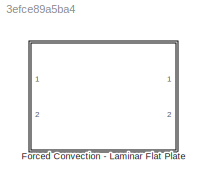
MODEL slx_3efce89a5ba4
KIND library
CONFIG AbsTol = auto
CONFIG FixedStep = auto
CONFIG MaxStep = auto
CONFIG MinStep = auto
CONFIG RelTol = 1e-3
CONFIG SampleTimeConstraint = Unconstrained
CONFIG Solver = ode45
CONFIG SolverMode = Auto
CONFIG SolverName = ode45
CONFIG StartTime = 0.0
CONFIG StopTime = 10.0
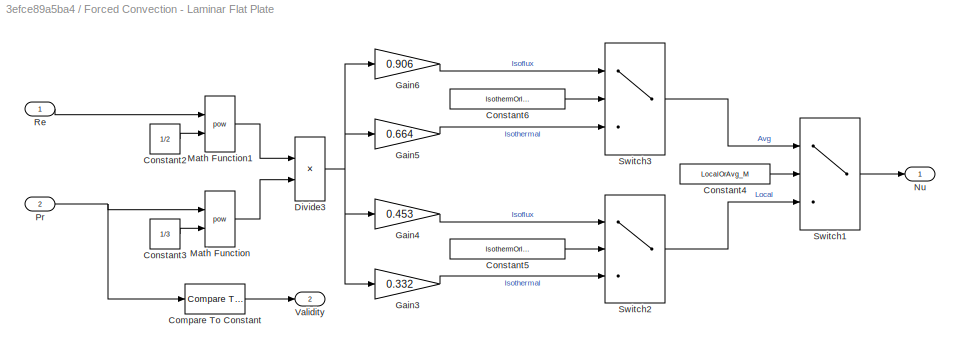
BLOCK [SubSystem] Forced Convection - Laminar Flat Plate
  Ports = [2, 2]
  RequestExecContextInheritance = off
BLOCK [Reference] Forced Convection - Laminar Flat Plate/Compare To Constant  REF=simulink/Logic and Bit
Operations/Compare
To Constant
  OutDataTypeStr = boolean
  Ports = [1, 1]
  SourceBlock = simulink/Logic and Bit\nOperations/Compare\nTo Constant
  SourceType = Compare To Constant
  ZeroCross = on
  const = 0.6
  relop = <
BLOCK [Constant] Forced Convection - Laminar Flat Plate/Constant2
  Value = 1/2
BLOCK [Constant] Forced Convection - Laminar Flat Plate/Constant3
  Value = 1/3
BLOCK [Constant] Forced Convection - Laminar Flat Plate/Constant4
  Value = LocalOrAvg_M
BLOCK [Constant] Forced Convection - Laminar Flat Plate/Constant5
  Value = IsothermOrIsoflux_M
BLOCK [Constant] Forced Convection - Laminar Flat Plate/Constant6
  Value = IsothermOrIsoflux_M
BLOCK [Product] Forced Convection - Laminar Flat Plate/Divide3
  InputSameDT = off
  Inputs = **
  OutDataTypeStr = Inherit: Inherit via internal rule
  Ports = [2, 1]
  RndMeth = Floor
  SaturateOnIntegerOverflow = off
BLOCK [Gain] Forced Convection - Laminar Flat Plate/Gain3
  Gain = 0.332
  OutDataTypeStr = Inherit: Inherit via internal rule
  ParamDataTypeStr = Inherit: Inherit via internal rule
  SaturateOnIntegerOverflow = off
BLOCK [Gain] Forced Convection - Laminar Flat Plate/Gain4
  Gain = 0.453
  OutDataTypeStr = Inherit: Inherit via internal rule
  ParamDataTypeStr = Inherit: Inherit via internal rule
  SaturateOnIntegerOverflow = off
BLOCK [Gain] Forced Convection - Laminar Flat Plate/Gain5
  Gain = 0.664
  OutDataTypeStr = Inherit: Inherit via internal rule
  ParamDataTypeStr = Inherit: Inherit via internal rule
  SaturateOnIntegerOverflow = off
BLOCK [Gain] Forced Convection - Laminar Flat Plate/Gain6
  Gain = 0.906
  OutDataTypeStr = Inherit: Inherit via internal rule
  ParamDataTypeStr = Inherit: Inherit via internal rule
  SaturateOnIntegerOverflow = off
BLOCK [Math] Forced Convection - Laminar Flat Plate/Math Function
  Operator = pow
  Ports = [2, 1]
BLOCK [Math] Forced Convection - Laminar Flat Plate/Math Function1
  Operator = pow
  Ports = [2, 1]
BLOCK [Outport] Forced Convection - Laminar Flat Plate/Nu
  IconDisplay = Port number
BLOCK [Inport] Forced Convection - Laminar Flat Plate/Pr
  IconDisplay = Port number
  Port = 2
BLOCK [Inport] Forced Convection - Laminar Flat Plate/Re
  IconDisplay = Port number
BLOCK [Switch] Forced Convection - Laminar Flat Plate/Switch1
  Criteria = u2 > Threshold
  InputSameDT = off
  SaturateOnIntegerOverflow = off
  Threshold = 1.5
BLOCK [Switch] Forced Convection - Laminar Flat Plate/Switch2
  Criteria = u2 > Threshold
  InputSameDT = off
  SaturateOnIntegerOverflow = off
  Threshold = 1.5
BLOCK [Switch] Forced Convection - Laminar Flat Plate/Switch3
  Criteria = u2 > Threshold
  InputSameDT = off
  SaturateOnIntegerOverflow = off
  Threshold = 1.5
BLOCK [Outport] Forced Convection - Laminar Flat Plate/Validity
  IconDisplay = Port number
  Port = 2
LINE Forced Convection - Laminar Flat Plate/Compare To Constant:1 -> Forced Convection - Laminar Flat Plate/Validity:1
LINE Forced Convection - Laminar Flat Plate/Constant2:1 -> Forced Convection - Laminar Flat Plate/Math Function1:2
LINE Forced Convection - Laminar Flat Plate/Constant3:1 -> Forced Convection - Laminar Flat Plate/Math Function:2
LINE Forced Convection - Laminar Flat Plate/Constant4:1 -> Forced Convection - Laminar Flat Plate/Switch1:2
LINE Forced Convection - Laminar Flat Plate/Constant5:1 -> Forced Convection - Laminar Flat Plate/Switch2:2
LINE Forced Convection - Laminar Flat Plate/Constant6:1 -> Forced Convection - Laminar Flat Plate/Switch3:2
NET Forced Convection - Laminar Flat Plate/Divide3:1 -> Forced Convection - Laminar Flat Plate/Gain3:1, Forced Convection - Laminar Flat Plate/Gain4:1, Forced Convection - Laminar Flat Plate/Gain5:1, Forced Convection - Laminar Flat Plate/Gain6:1
LINE Forced Convection - Laminar Flat Plate/Gain3:1 -> Forced Convection - Laminar Flat Plate/Switch2:3
LINE Forced Convection - Laminar Flat Plate/Gain4:1 -> Forced Convection - Laminar Flat Plate/Switch2:1
LINE Forced Convection - Laminar Flat Plate/Gain5:1 -> Forced Convection - Laminar Flat Plate/Switch3:3
LINE Forced Convection - Laminar Flat Plate/Gain6:1 -> Forced Convection - Laminar Flat Plate/Switch3:1
LINE Forced Convection - Laminar Flat Plate/Math Function1:1 -> Forced Convection - Laminar Flat Plate/Divide3:1
LINE Forced Convection - Laminar Flat Plate/Math Function:1 -> Forced Convection - Laminar Flat Plate/Divide3:2
NET Forced Convection - Laminar Flat Plate/Pr:1 -> Forced Convection - Laminar Flat Plate/Compare To Constant:1, Forced Convection - Laminar Flat Plate/Math Function:1
LINE Forced Convection - Laminar Flat Plate/Re:1 -> Forced Convection - Laminar Flat Plate/Math Function1:1
LINE Forced Convection - Laminar Flat Plate/Switch1:1 -> Forced Convection - Laminar Flat Plate/Nu:1
LINE Forced Convection - Laminar Flat Plate/Switch2:1 -> Forced Convection - Laminar Flat Plate/Switch1:3
LINE Forced Convection - Laminar Flat Plate/Switch3:1 -> Forced Convection - Laminar Flat Plate/Switch1:1
note: NET lines group one-source signal fan-out (src -> all destinations, sorted); 1:1 wires keep LINE
